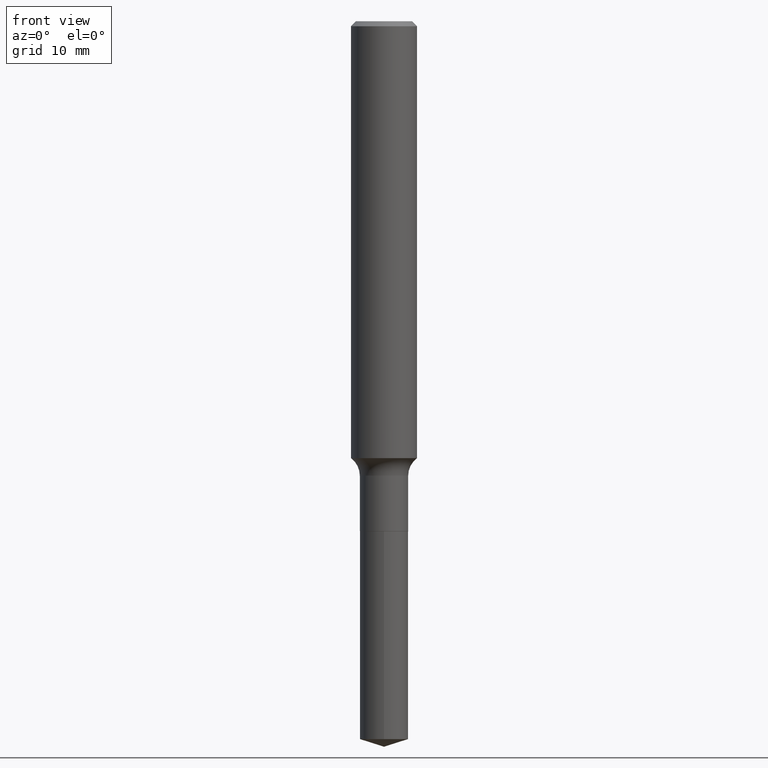
[diagram: clean part render]
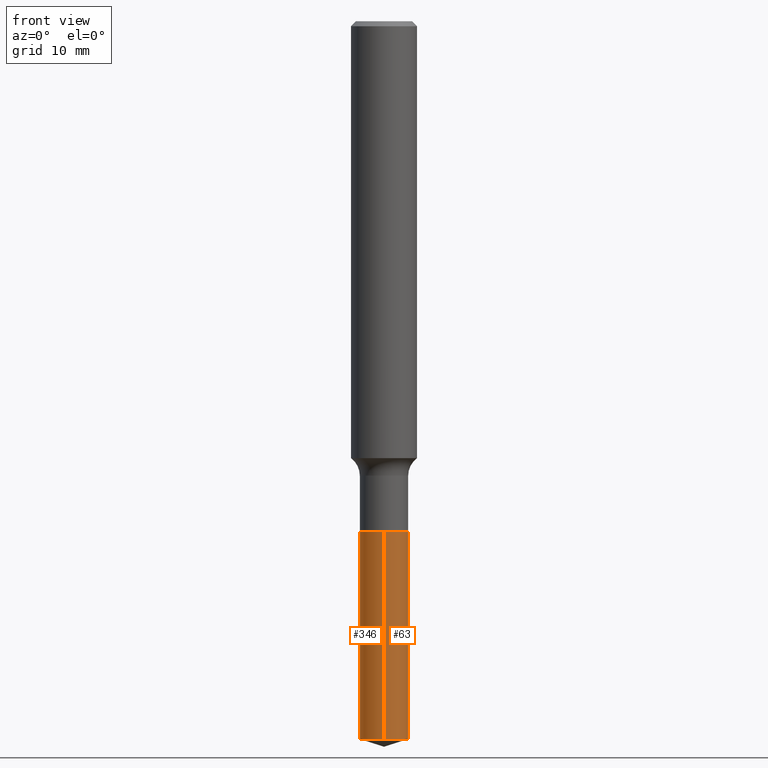
[diagram: same view with one multi-face feature highlighted, each face labeled with its STEP entity id]
A machine part, front view. The highlighted faces form ONE feature: a constant-radius fillet chain: 2 tangent blend faces with common blend radius 2.1996 mm. The faces share edges in the B-rep.
Their STEP definitions:
[1] entity #346 (Cylinder):
#22 = EDGE_CURVE ( 'NONE', #245, #392, #209, .T. ) ;
#34 = CYLINDRICAL_SURFACE ( 'NONE', #110, 0.08659999999999998255 ) ;
#45 = DIRECTION ( 'NONE',  ( -6.982962677686265922E-15, -1.000000000000000000, 6.309117768277745325E-15 ) ) ;
#48 = CARTESIAN_POINT ( 'NONE',  ( -6.047245678875858606E-16, -0.08660000000000638021, -1.826699999999999768 ) ) ;
#87 = DIRECTION ( 'NONE',  ( -2.445684263508397552E-29, 3.491172791693167047E-15, 1.000000000000000000 ) ) ;
#96 = DIRECTION ( 'NONE',  ( -2.445684263508397552E-29, 3.491172791693167047E-15, 1.000000000000000000 ) ) ;
#99 = VECTOR ( 'NONE', #96, 39.37007874015748143 ) ;
#102 = CARTESIAN_POINT ( 'NONE',  ( 4.467137868258388805E-29, -6.377888961664773574E-15, -1.826699999999999990 ) ) ;
#103 = VERTEX_POINT ( 'NONE', #350 ) ;
#105 = ORIENTED_EDGE ( 'NONE', *, *, #22, .F. ) ;
#110 = AXIS2_PLACEMENT_3D ( 'NONE', #412, #116, #487 ) ;
#112 = AXIS2_PLACEMENT_3D ( 'NONE', #450, #266, #45 ) ;
#116 = DIRECTION ( 'NONE',  ( -2.445684263508397271E-29, 3.491172791693167047E-15, 1.000000000000000000 ) ) ;
#123 = FACE_OUTER_BOUND ( 'NONE', #349, .T. ) ;
#149 = EDGE_CURVE ( 'NONE', #324, #103, #314, .T. ) ;
#193 = CARTESIAN_POINT ( 'NONE',  ( 6.153300091682912076E-16, 0.08659999999999359876, -1.826700000000000212 ) ) ;
#206 = AXIS2_PLACEMENT_3D ( 'NONE', #102, #219, #246 ) ;
#209 = CIRCLE ( 'NONE', #206, 0.08659999999999998255 ) ;
#214 = ORIENTED_EDGE ( 'NONE', *, *, #382, .F. ) ;
#219 = DIRECTION ( 'NONE',  ( -2.445684263508397271E-29, 3.491172791693167047E-15, 1.000000000000000000 ) ) ;
#226 = EDGE_CURVE ( 'NONE', #103, #392, #240, .T. ) ;
#231 = LINE ( 'NONE', #193, #272 ) ;
#240 = LINE ( 'NONE', #311, #99 ) ;
#243 = ORIENTED_EDGE ( 'NONE', *, *, #226, .T. ) ;
#245 = VERTEX_POINT ( 'NONE', #348 ) ;
#246 = DIRECTION ( 'NONE',  ( -6.982962677686265922E-15, -1.000000000000000000, 3.154558884138872662E-15 ) ) ;
#266 = DIRECTION ( 'NONE',  ( -2.445684263508397271E-29, 3.491172791693167047E-15, 1.000000000000000000 ) ) ;
#272 = VECTOR ( 'NONE', #87, 39.37007874015748143 ) ;
#311 = CARTESIAN_POINT ( 'NONE',  ( -6.047245678875858606E-16, -0.08660000000000638021, -1.826699999999999768 ) ) ;
#314 = CIRCLE ( 'NONE', #112, 0.08659999999999998255 ) ;
#322 = CARTESIAN_POINT ( 'NONE',  ( 6.153300091683094500E-16, 0.08659999999999098974, -2.571095124883080452 ) ) ;
#324 = VERTEX_POINT ( 'NONE', #322 ) ;
#346 = ADVANCED_FACE ( 'NONE', ( #123 ), #34, .T. ) ;
#348 = CARTESIAN_POINT ( 'NONE',  ( 6.153300091683094500E-16, 0.08659999999999358489, -1.826700000000000212 ) ) ;
#349 = EDGE_LOOP ( 'NONE', ( #214, #444, #243, #105 ) ) ;
#350 = CARTESIAN_POINT ( 'NONE',  ( -6.047245678875677168E-16, -0.08660000000000897535, -2.571095124883079119 ) ) ;
#382 = EDGE_CURVE ( 'NONE', #324, #245, #231, .T. ) ;
#392 = VERTEX_POINT ( 'NONE', #48 ) ;
#412 = CARTESIAN_POINT ( 'NONE',  ( 4.467137868258388805E-29, -6.377888961664773574E-15, -1.826699999999999990 ) ) ;
#444 = ORIENTED_EDGE ( 'NONE', *, *, #149, .T. ) ;
#450 = CARTESIAN_POINT ( 'NONE',  ( 6.287693311017304751E-29, -8.976700967925621548E-15, -2.571095124883080008 ) ) ;
#487 = DIRECTION ( 'NONE',  ( -6.982962677686265922E-15, -1.000000000000000000, 3.154558884138872662E-15 ) ) ;
[2] entity #63 (Cylinder):
#20 = EDGE_LOOP ( 'NONE', ( #275, #395, #249, #480 ) ) ;
#29 = FACE_OUTER_BOUND ( 'NONE', #20, .T. ) ;
#48 = CARTESIAN_POINT ( 'NONE',  ( -6.047245678875858606E-16, -0.08660000000000638021, -1.826699999999999768 ) ) ;
#63 = ADVANCED_FACE ( 'NONE', ( #29 ), #258, .T. ) ;
#64 = DIRECTION ( 'NONE',  ( -6.982962677686265922E-15, -1.000000000000000000, 3.154558884138872662E-15 ) ) ;
#75 = DIRECTION ( 'NONE',  ( -2.445684263508397271E-29, 3.491172791693167047E-15, 1.000000000000000000 ) ) ;
#77 = CARTESIAN_POINT ( 'NONE',  ( 4.467137868258388805E-29, -6.377888961664773574E-15, -1.826699999999999990 ) ) ;
#87 = DIRECTION ( 'NONE',  ( -2.445684263508397552E-29, 3.491172791693167047E-15, 1.000000000000000000 ) ) ;
#96 = DIRECTION ( 'NONE',  ( -2.445684263508397552E-29, 3.491172791693167047E-15, 1.000000000000000000 ) ) ;
#99 = VECTOR ( 'NONE', #96, 39.37007874015748143 ) ;
#103 = VERTEX_POINT ( 'NONE', #350 ) ;
#121 = DIRECTION ( 'NONE',  ( -6.982962677686265922E-15, -1.000000000000000000, 3.154558884138872662E-15 ) ) ;
#157 = CARTESIAN_POINT ( 'NONE',  ( 6.287693311017304751E-29, -8.976700967925621548E-15, -2.571095124883080008 ) ) ;
#193 = CARTESIAN_POINT ( 'NONE',  ( 6.153300091682912076E-16, 0.08659999999999359876, -1.826700000000000212 ) ) ;
#226 = EDGE_CURVE ( 'NONE', #103, #392, #240, .T. ) ;
#231 = LINE ( 'NONE', #193, #272 ) ;
#233 = AXIS2_PLACEMENT_3D ( 'NONE', #77, #260, #121 ) ;
#239 = CIRCLE ( 'NONE', #233, 0.08659999999999998255 ) ;
#240 = LINE ( 'NONE', #311, #99 ) ;
#245 = VERTEX_POINT ( 'NONE', #348 ) ;
#249 = ORIENTED_EDGE ( 'NONE', *, *, #437, .F. ) ;
#257 = DIRECTION ( 'NONE',  ( -2.445684263508397271E-29, 3.491172791693167047E-15, 1.000000000000000000 ) ) ;
#258 = CYLINDRICAL_SURFACE ( 'NONE', #387, 0.08659999999999998255 ) ;
#260 = DIRECTION ( 'NONE',  ( -2.445684263508397271E-29, 3.491172791693167047E-15, 1.000000000000000000 ) ) ;
#272 = VECTOR ( 'NONE', #87, 39.37007874015748143 ) ;
#275 = ORIENTED_EDGE ( 'NONE', *, *, #351, .T. ) ;
#311 = CARTESIAN_POINT ( 'NONE',  ( -6.047245678875858606E-16, -0.08660000000000638021, -1.826699999999999768 ) ) ;
#322 = CARTESIAN_POINT ( 'NONE',  ( 6.153300091683094500E-16, 0.08659999999999098974, -2.571095124883080452 ) ) ;
#324 = VERTEX_POINT ( 'NONE', #322 ) ;
#342 = AXIS2_PLACEMENT_3D ( 'NONE', #157, #257, #458 ) ;
#348 = CARTESIAN_POINT ( 'NONE',  ( 6.153300091683094500E-16, 0.08659999999999358489, -1.826700000000000212 ) ) ;
#350 = CARTESIAN_POINT ( 'NONE',  ( -6.047245678875677168E-16, -0.08660000000000897535, -2.571095124883079119 ) ) ;
#351 = EDGE_CURVE ( 'NONE', #103, #324, #373, .T. ) ;
#373 = CIRCLE ( 'NONE', #342, 0.08659999999999998255 ) ;
#382 = EDGE_CURVE ( 'NONE', #324, #245, #231, .T. ) ;
#387 = AXIS2_PLACEMENT_3D ( 'NONE', #391, #75, #64 ) ;
#391 = CARTESIAN_POINT ( 'NONE',  ( 4.467137868258388805E-29, -6.377888961664773574E-15, -1.826699999999999990 ) ) ;
#392 = VERTEX_POINT ( 'NONE', #48 ) ;
#395 = ORIENTED_EDGE ( 'NONE', *, *, #382, .T. ) ;
#437 = EDGE_CURVE ( 'NONE', #392, #245, #239, .T. ) ;
#458 = DIRECTION ( 'NONE',  ( -6.982962677686265922E-15, -1.000000000000000000, 6.309117768277745325E-15 ) ) ;
#480 = ORIENTED_EDGE ( 'NONE', *, *, #226, .F. ) ;